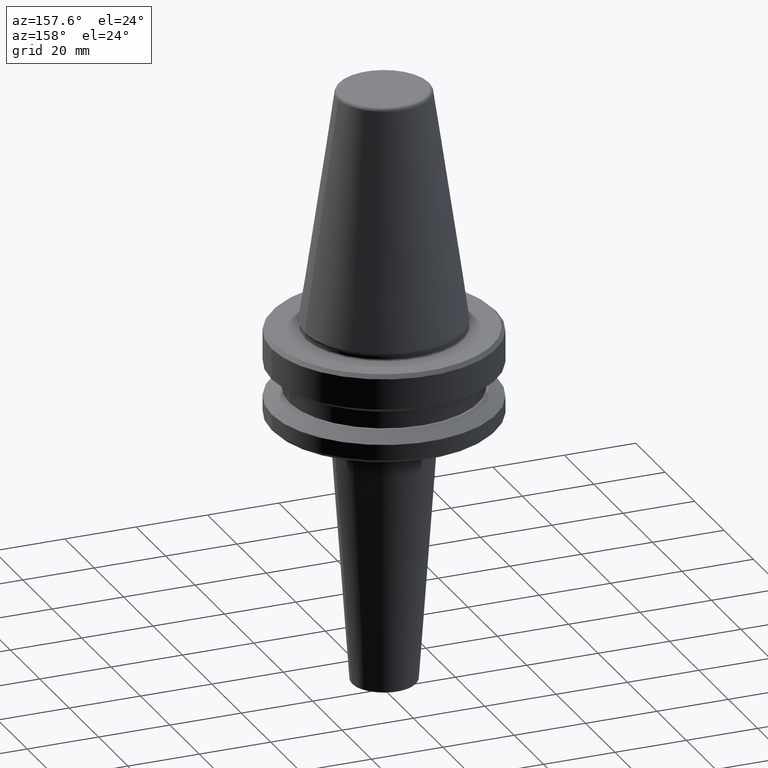
[diagram: clean part render]
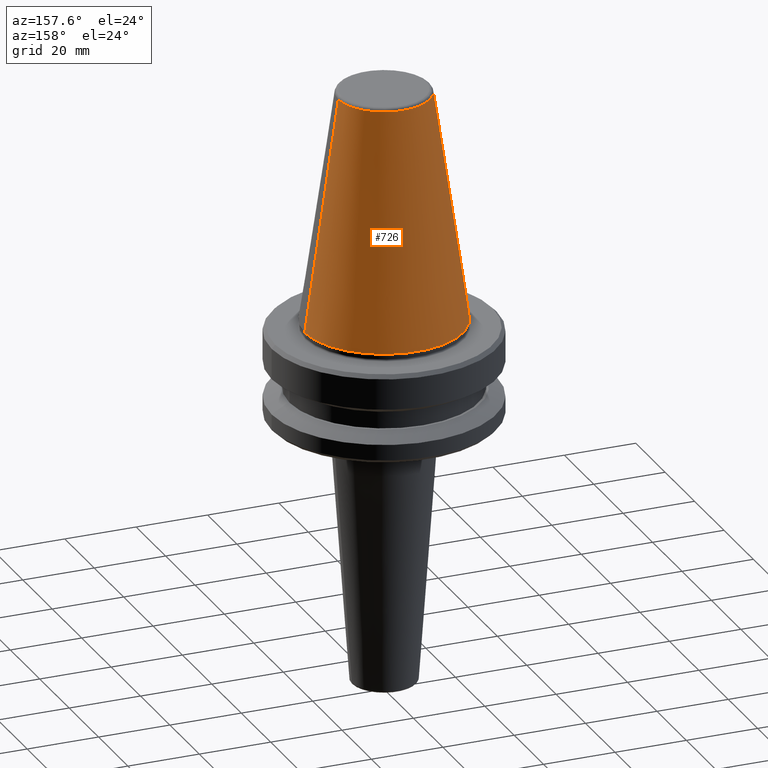
[diagram: same view with one face highlighted and labeled with its STEP entity id]
A machine part, auxiliary view. The second image highlights one B-rep face of the part: STEP entity #726.
In plain terms, the highlighted conical surface has half-angle 8.297 deg.
Its self-contained STEP definition (entity closure, byte-faithful):
#42 = DIRECTION ( 'NONE',  ( 0.0000000000000000000, 0.0000000000000000000, -1.000000000000000000 ) ) ;
#46 = DIRECTION ( 'NONE',  ( 1.000000000000000000, 0.0000000000000000000, 0.0000000000000000000 ) ) ;
#69 = CARTESIAN_POINT ( 'NONE',  ( -12.81220206925736900, 0.0000000000000000000, -0.8556918111122247000 ) ) ;
#78 = CARTESIAN_POINT ( 'NONE',  ( 12.81220206925736900, 2.145409868259749100E-015, -0.8556918111122247000 ) ) ;
#101 = CARTESIAN_POINT ( 'NONE',  ( 0.0000000000000000000, 0.0000000000000000000, -65.40000000000057400 ) ) ;
#105 = CARTESIAN_POINT ( 'NONE',  ( 0.0000000000000000000, 0.0000000000000000000, -0.8556918111122247000 ) ) ;
#166 = DIRECTION ( 'NONE',  ( -0.1443081888881795900, 0.0000000000000000000, -0.9895327920891826600 ) ) ;
#171 = CARTESIAN_POINT ( 'NONE',  ( 0.0000000000000000000, 0.0000000000000000000, -0.8556918111122247000 ) ) ;
#174 = CARTESIAN_POINT ( 'NONE',  ( -12.81220206925736900, 0.0000000000000000000, -0.8556918111122247000 ) ) ;
#176 = EDGE_CURVE ( 'NONE', #811, #926, #187, .T. ) ;
#184 = EDGE_CURVE ( 'NONE', #779, #811, #591, .T. ) ;
#187 = LINE ( 'NONE', #174, #217 ) ;
#193 = CONICAL_SURFACE ( 'NONE', #1014, 12.81220206925736900, 0.1448138077623198300 ) ;
#217 = VECTOR ( 'NONE', #166, 1000.000000000000000 ) ;
#244 = AXIS2_PLACEMENT_3D ( 'NONE', #171, #746, #46 ) ;
#343 = ORIENTED_EDGE ( 'NONE', *, *, #447, .T. ) ;
#348 = DIRECTION ( 'NONE',  ( 1.000000000000000000, 0.0000000000000000000, 0.0000000000000000000 ) ) ;
#427 = FACE_OUTER_BOUND ( 'NONE', #696, .T. ) ;
#438 = LINE ( 'NONE', #551, #488 ) ;
#447 = EDGE_CURVE ( 'NONE', #779, #582, #438, .T. ) ;
#488 = VECTOR ( 'NONE', #860, 1000.000000000000000 ) ;
#551 = CARTESIAN_POINT ( 'NONE',  ( 12.81220206925736900, 1.569042225414513200E-015, -0.8556918111122247000 ) ) ;
#568 = CARTESIAN_POINT ( 'NONE',  ( 22.22499999999993700, 0.0000000000000000000, -65.40000000000057400 ) ) ;
#573 = AXIS2_PLACEMENT_3D ( 'NONE', #101, #818, #348 ) ;
#582 = VERTEX_POINT ( 'NONE', #568 ) ;
#591 = CIRCLE ( 'NONE', #244, 12.81220206925736900 ) ;
#634 = ORIENTED_EDGE ( 'NONE', *, *, #184, .F. ) ;
#696 = EDGE_LOOP ( 'NONE', ( #634, #343, #729, #942 ) ) ;
#726 = ADVANCED_FACE ( 'NONE', ( #427 ), #193, .T. ) ;
#729 = ORIENTED_EDGE ( 'NONE', *, *, #853, .T. ) ;
#745 = CARTESIAN_POINT ( 'NONE',  ( -22.22499999999993700, 2.721777511104985000E-015, -65.40000000000057400 ) ) ;
#746 = DIRECTION ( 'NONE',  ( -0.0000000000000000000, -0.0000000000000000000, 1.000000000000000000 ) ) ;
#779 = VERTEX_POINT ( 'NONE', #78 ) ;
#811 = VERTEX_POINT ( 'NONE', #69 ) ;
#818 = DIRECTION ( 'NONE',  ( -0.0000000000000000000, -0.0000000000000000000, 1.000000000000000000 ) ) ;
#853 = EDGE_CURVE ( 'NONE', #582, #926, #974, .T. ) ;
#860 = DIRECTION ( 'NONE',  ( 0.1443081888881795900, 1.767265616126607700E-017, -0.9895327920891826600 ) ) ;
#926 = VERTEX_POINT ( 'NONE', #745 ) ;
#942 = ORIENTED_EDGE ( 'NONE', *, *, #176, .F. ) ;
#974 = CIRCLE ( 'NONE', #573, 22.22499999999993700 ) ;
#1014 = AXIS2_PLACEMENT_3D ( 'NONE', #105, #42, #1029 ) ;
#1029 = DIRECTION ( 'NONE',  ( -1.000000000000000000, 0.0000000000000000000, 0.0000000000000000000 ) ) ;